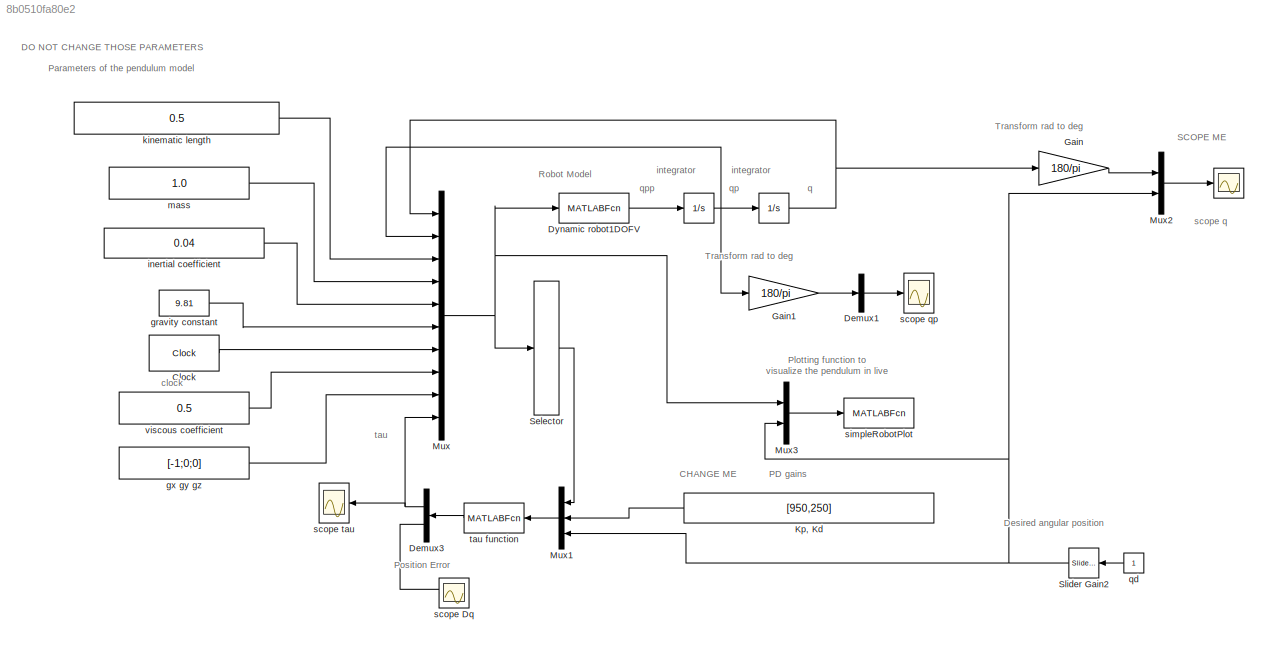
MODEL slx_8b0510fa80e2
KIND model
CONFIG AbsTol = auto
CONFIG EnableMultiTasking = on
CONFIG FixedStep = 0.001
CONFIG MaxStep = auto
CONFIG MinStep = auto
CONFIG RelTol = 1e-3
CONFIG SampleTimeConstraint = Unconstrained
CONFIG SolverName = ode1
CONFIG StartTime = 0.0
CONFIG StopTime = 10
BLOCK [Integrator]  
  InitialCondition = [0]
  Ports = [1, 1]
BLOCK [Integrator]   
  InitialCondition = [0]
  Ports = [1, 1]
BLOCK [Scope]     
  Floating = off
  NumInputPorts = 1
  Ports = [1]
  ScopeSpecificationString = Simulink.scopes.TimeScopeBlockCfg('CurrentConfiguration', extmgr.ConfigurationSet(extmgr.Configuration('Core','General UI',true),extmgr.Configuration('Core','Source UI',true),extmgr.Configuration('Sources','WiredSimulink',true,'DataLoggingSaveFormat','StructureWithTime','DataLoggingDecimation','1','DataLoggingDecimateData',true,'DataLogging',true,'DataLoggingVariableName','q1'),extmgr.Configuratio...<+1714ch>
BLOCK [Clock] Clock
  DisplayTime = on
BLOCK [Demux] Demux1
  Outputs = 1
  Ports = [1, 1]
BLOCK [Demux] Demux3
  Outputs = 2
  Ports = [1, 2]
BLOCK [MATLABFcn] Dynamic robot1DOFV
  MATLABFcn = Dynamic_robot1DOFV(u)
  OutputDimensions = 1
  Ports = [1, 1]
BLOCK [Gain] Gain
  Gain = 180/pi
BLOCK [Gain] Gain1
  Gain = 180/pi
BLOCK [Constant] Kp, Kd
  Value = [950,250]
BLOCK [Mux] Mux
  DisplayOption = bar
  Inputs = 10
  Ports = [10, 1]
BLOCK [Mux] Mux1
  DisplayOption = bar
  Inputs = 3
  Ports = [3, 1]
BLOCK [Mux] Mux2
  DisplayOption = bar
  Inputs = 2
  Ports = [2, 1]
BLOCK [Mux] Mux3
  DisplayOption = bar
  Inputs = 2
  Ports = [2, 1]
BLOCK [Selector] Selector
  IndexOptions = Index vector (dialog)
  Indices = [1:11]
  InputPortWidth = 12
  OutputSizes = 1
  Ports = [1, 1]
BLOCK [Reference] Slider Gain2  REF=simulink/Math
Operations/Slider
Gain
  Ports = [1, 1]
  SourceBlock = simulink/Math\nOperations/Slider\nGain
  SourceProductBaseCode = SL
  SourceType = Slider Gain
BLOCK [Constant] gravity constant
  Value = 9.81
BLOCK [Constant] gx gy gz
  Value = [-1;0;0]
BLOCK [Constant] inertial coefficient
  Value = 0.04
BLOCK [Constant] kinematic length
  Value = 0.5
BLOCK [Constant] mass 
  Value = 1.0
BLOCK [Constant] qd
BLOCK [Scope] scope Dq
  Floating = off
  NumInputPorts = 1
  Ports = [1]
  ScopeSpecificationString = Simulink.scopes.TimeScopeBlockCfg('CurrentConfiguration', extmgr.ConfigurationSet(extmgr.Configuration('Core','General UI',true),extmgr.Configuration('Core','Source UI',true),extmgr.Configuration('Sources','WiredSimulink',true,'DataLoggingSaveFormat','StructureWithTime','DataLoggingDecimation','1','DataLoggingDecimateData',true,'DataLogging',true,'DataLoggingVariableName','Dq'),extmgr.Configuratio...<+1710ch>
BLOCK [Scope] scope qp
  Floating = off
  NumInputPorts = 1
  Ports = [1]
  ScopeSpecificationString = Simulink.scopes.TimeScopeBlockCfg('CurrentConfiguration', extmgr.ConfigurationSet(extmgr.Configuration('Core','General UI',true),extmgr.Configuration('Core','Source UI',true),extmgr.Configuration('Sources','WiredSimulink',true,'DataLoggingSaveFormat','StructureWithTime','DataLoggingDecimation','1','DataLoggingDecimateData',true,'DataLogging',true,'DataLoggingVariableName','qp'),extmgr.Configuratio...<+1697ch>
BLOCK [Scope] scope tau
  Floating = off
  NumInputPorts = 1
  Ports = [1]
  ScopeSpecificationString = Simulink.scopes.TimeScopeBlockCfg('CurrentConfiguration', extmgr.ConfigurationSet(extmgr.Configuration('Core','General UI',true),extmgr.Configuration('Core','Source UI',true),extmgr.Configuration('Sources','WiredSimulink',true,'DataLoggingSaveFormat','StructureWithTime','DataLoggingDecimation','1','DataLoggingDecimateData',true,'DataLoggingVariableName','tau','DataLogging',true),extmgr.Configurati...<+1712ch>
BLOCK [MATLABFcn] simpleRobotPlot
  MATLABFcn = simpleRobotPlotv2(u)
  OutputDimensions = 0
  Ports = [1]
BLOCK [MATLABFcn] tau function
  MATLABFcn = Tau(u)
  OutputDimensions = 2
  Ports = [1, 1]
BLOCK [Constant] viscous coefficient 
  Value = 0.5
ANNOTATION (root): SCOPE ME
ANNOTATION (root): CHANGE ME
ANNOTATION (root): DO NOT CHANGE THOSE PARAMETERS
ANNOTATION (root): Desired angular position
ANNOTATION (root): PD gains
ANNOTATION (root): Parameters of the pendulum model
ANNOTATION (root): Plotting function to visualize the pendulum in live
ANNOTATION (root): Position Error
ANNOTATION (root): Robot Model
ANNOTATION (root): Transform rad to deg
ANNOTATION (root): clock
ANNOTATION (root): integrator
ANNOTATION (root): q
ANNOTATION (root): qp
ANNOTATION (root): qpp
ANNOTATION (root): scope q
ANNOTATION (root): tau
NET   :1 -> Gain:1, Mux:1
NET  :1 ->   :1, Gain1:1, Mux:2
LINE Clock:1 -> Mux:7
LINE Demux1:1 -> scope qp:1
NET Demux3:1 -> Mux:10, scope tau:1
LINE Demux3:2 -> scope Dq:1
LINE Dynamic robot1DOFV:1 ->  :1
LINE Gain1:1 -> Demux1:1
LINE Gain:1 -> Mux2:1
LINE Kp, Kd:1 -> Mux1:2
LINE Mux1:1 -> tau function:1
LINE Mux2:1 ->     :1
LINE Mux3:1 -> simpleRobotPlot:1
NET Mux:1 -> Dynamic robot1DOFV:1, Mux3:1, Selector:1
LINE Selector:1 -> Mux1:1
NET Slider Gain2:1 -> Mux1:3, Mux2:2, Mux3:2
LINE gravity constant:1 -> Mux:6
LINE gx gy gz:1 -> Mux:9
LINE inertial coefficient:1 -> Mux:5
LINE kinematic length:1 -> Mux:3
LINE mass :1 -> Mux:4
LINE qd:1 -> Slider Gain2:1
LINE tau function:1 -> Demux3:1
LINE viscous coefficient :1 -> Mux:8
note: NET lines group one-source signal fan-out (src -> all destinations, sorted); 1:1 wires keep LINE
